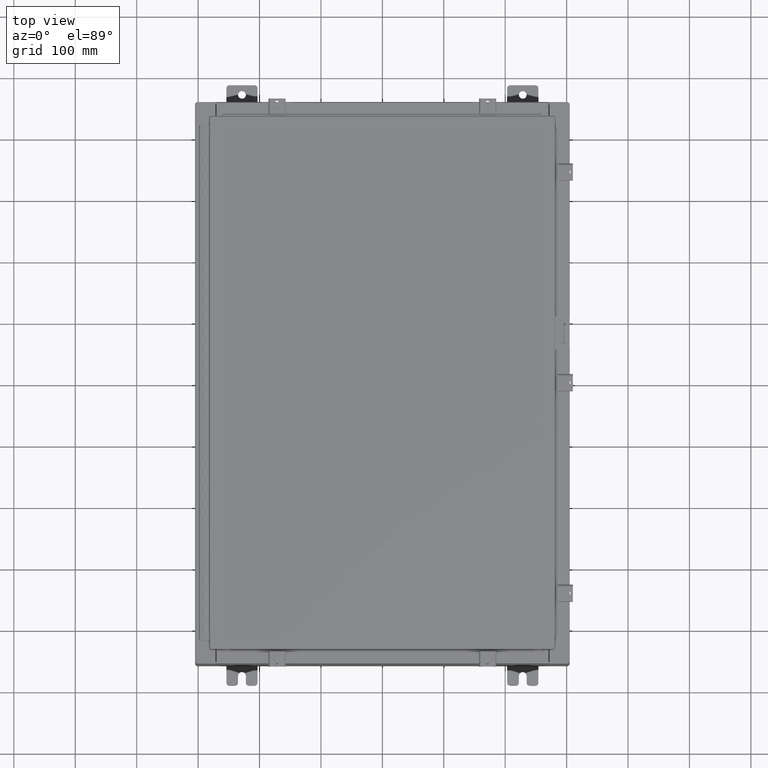
[diagram: clean part render]
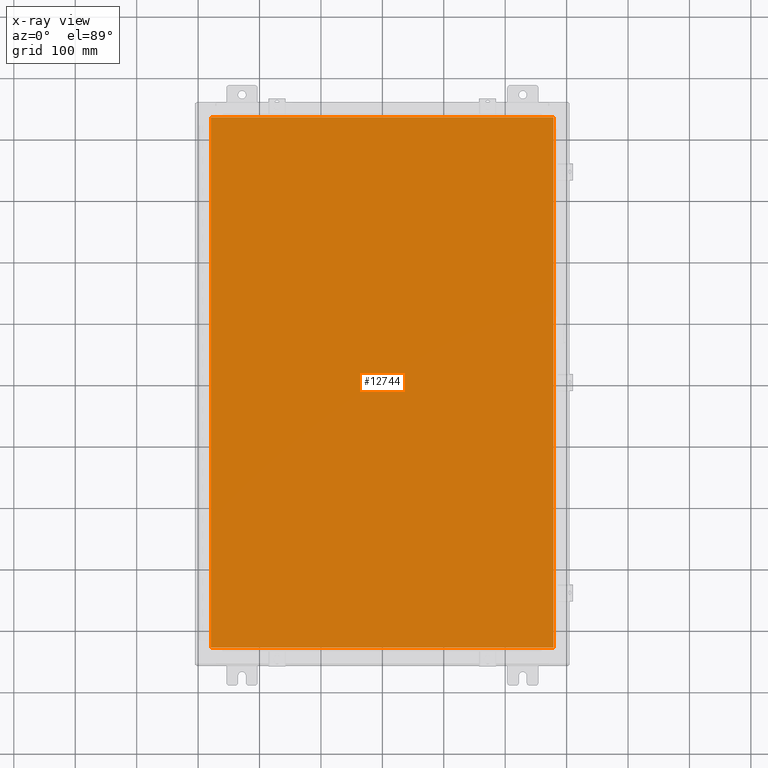
[diagram: x-ray — body ghosted, one internal face saturated and labeled with its STEP entity id]
A machine part, top view, then the same camera in x-ray: the body is ghosted and one INTERNAL B-rep face — a face not visible from any outside direction — is saturated and labeled: STEP entity #12744.
In plain terms, the highlighted planar face has unit normal (0, 0, -1).
Its self-contained STEP definition (entity closure, byte-faithful):
#802 = CARTESIAN_POINT ( 'NONE',  ( -10.99030000000000100, 17.00630000000000700, -0.07470000000000000300 ) ) ;
#3995 = CARTESIAN_POINT ( 'NONE',  ( -10.99030000000000000, -17.00629999999999600, -0.07469999999999910000 ) ) ;
#5241 = ORIENTED_EDGE ( 'NONE', *, *, #12658, .F. ) ;
#5357 = FACE_OUTER_BOUND ( 'NONE', #7189, .T. ) ;
#7189 = EDGE_LOOP ( 'NONE', ( #32459, #21397, #5241, #27726 ) ) ;
#8422 = LINE ( 'NONE', #30572, #33298 ) ;
#8510 = VECTOR ( 'NONE', #22657, 39.37007874015748100 ) ;
#9702 = CARTESIAN_POINT ( 'NONE',  ( 10.99029999999999800, 17.00630000000000700, -0.07470000000000019700 ) ) ;
#10523 = DIRECTION ( 'NONE',  ( 1.000000000000000000, -0.0000000000000000000, -0.0000000000000000000 ) ) ;
#11664 = CARTESIAN_POINT ( 'NONE',  ( 0.0000000000000000000, 0.0000000000000000000, -0.07470000000000000300 ) ) ;
#12658 = EDGE_CURVE ( 'NONE', #37933, #32920, #8422, .T. ) ;
#12744 = ADVANCED_FACE ( 'NONE', ( #5357 ), #31114, .T. ) ;
#14923 = EDGE_CURVE ( 'NONE', #36837, #37933, #27834, .T. ) ;
#14957 = DIRECTION ( 'NONE',  ( 0.0000000000000000000, 0.0000000000000000000, -1.000000000000000000 ) ) ;
#19904 = CARTESIAN_POINT ( 'NONE',  ( 10.99029999999999600, -17.00629999999999200, -0.07470000000000019700 ) ) ;
#21397 = ORIENTED_EDGE ( 'NONE', *, *, #37383, .F. ) ;
#22657 = DIRECTION ( 'NONE',  ( -1.000000000000000000, -0.0000000000000000000, -0.0000000000000000000 ) ) ;
#23227 = DIRECTION ( 'NONE',  ( 0.0000000000000000000, 1.000000000000000000, 0.0000000000000000000 ) ) ;
#23941 = LINE ( 'NONE', #3995, #39122 ) ;
#24248 = DIRECTION ( 'NONE',  ( 0.0000000000000000000, -1.000000000000000000, 0.0000000000000000000 ) ) ;
#25948 = LINE ( 'NONE', #19904, #33526 ) ;
#26103 = CARTESIAN_POINT ( 'NONE',  ( 10.99029999999999600, -17.00629999999999600, -0.07470000000000000300 ) ) ;
#26684 = AXIS2_PLACEMENT_3D ( 'NONE', #11664, #14957, #37680 ) ;
#27726 = ORIENTED_EDGE ( 'NONE', *, *, #14923, .F. ) ;
#27834 = LINE ( 'NONE', #9702, #8510 ) ;
#30572 = CARTESIAN_POINT ( 'NONE',  ( -10.99030000000000500, 17.00630000000000700, -0.07470000000000347200 ) ) ;
#31114 = PLANE ( 'NONE',  #26684 ) ;
#32459 = ORIENTED_EDGE ( 'NONE', *, *, #37328, .F. ) ;
#32920 = VERTEX_POINT ( 'NONE', #41412 ) ;
#33298 = VECTOR ( 'NONE', #24248, 39.37007874015748100 ) ;
#33526 = VECTOR ( 'NONE', #23227, 39.37007874015748100 ) ;
#33834 = CARTESIAN_POINT ( 'NONE',  ( 10.99029999999999600, 17.00630000000000700, -0.07470000000000000300 ) ) ;
#36837 = VERTEX_POINT ( 'NONE', #33834 ) ;
#37328 = EDGE_CURVE ( 'NONE', #41731, #36837, #25948, .T. ) ;
#37383 = EDGE_CURVE ( 'NONE', #32920, #41731, #23941, .T. ) ;
#37680 = DIRECTION ( 'NONE',  ( -1.000000000000000000, 0.0000000000000000000, -0.0000000000000000000 ) ) ;
#37933 = VERTEX_POINT ( 'NONE', #802 ) ;
#39122 = VECTOR ( 'NONE', #10523, 39.37007874015748100 ) ;
#41412 = CARTESIAN_POINT ( 'NONE',  ( -10.99030000000000000, -17.00629999999999600, -0.07470000000000000300 ) ) ;
#41731 = VERTEX_POINT ( 'NONE', #26103 ) ;